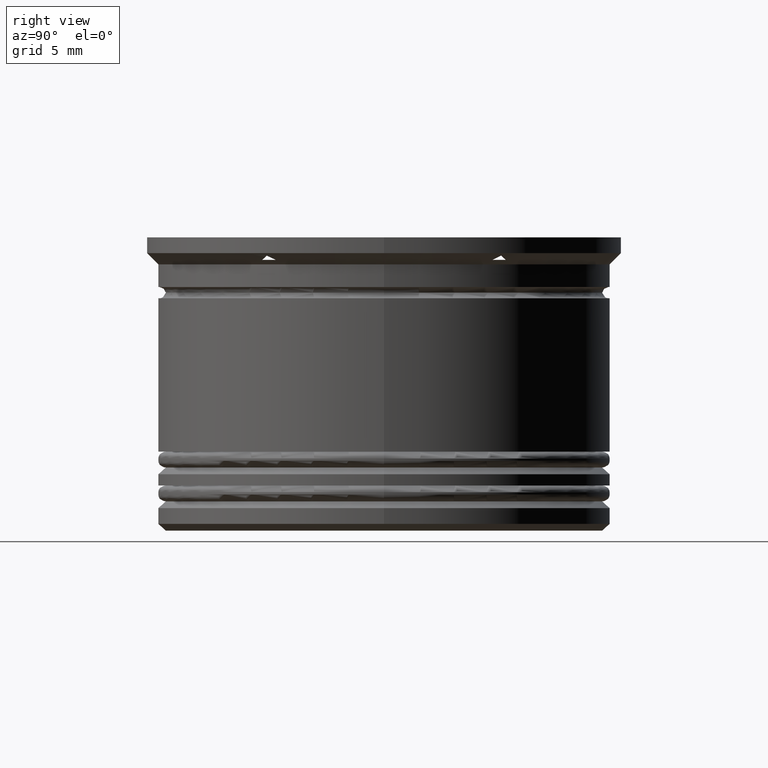
[diagram: clean part render]
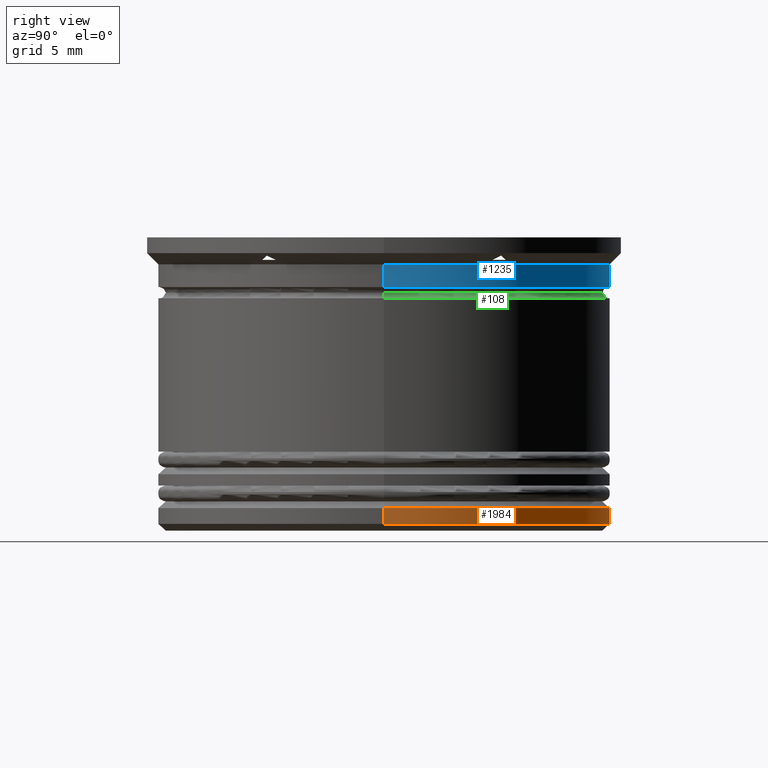
[diagram: same view with three faces highlighted in distinct colors, each labeled with its STEP entity id]
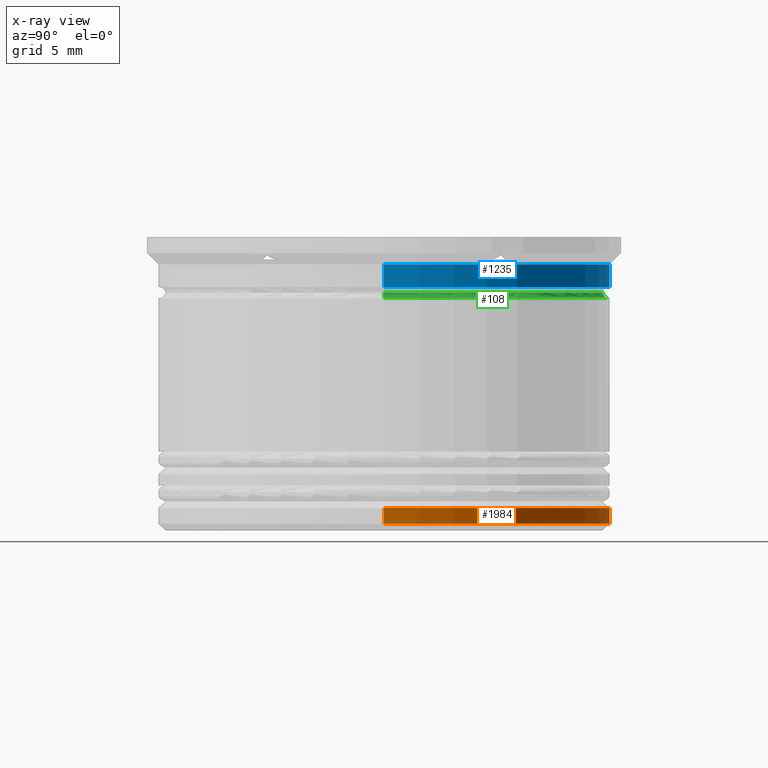
[diagram: x-ray of the same camera — body ghosted, the three highlighted faces saturated]
A machine part, right view with three faces highlighted in distinct colors.
The next image is the same camera in x-ray (body ghosted, the three faces saturated) — at least one of them is partly hidden behind the body in this view.
Their STEP definitions:

[orange] entity #1984 — the highlighted cylindrical surface (partial cylindrical patch) has radius 10 mm, axis along (-0, -0, 1).
#8 = ORIENTED_EDGE ( 'NONE', *, *, #2152, .T. ) ;
#77 = DIRECTION ( 'NONE',  ( -0.000000000000000000, -0.000000000000000000, 1.000000000000000000 ) ) ;
#241 = VERTEX_POINT ( 'NONE', #485 ) ;
#243 = CARTESIAN_POINT ( 'NONE',  ( 0.000000000000000000, 0.000000000000000000, 0.000000000000000000 ) ) ;
#267 = FACE_OUTER_BOUND ( 'NONE', #1239, .T. ) ;
#269 = CIRCLE ( 'NONE', #336, 10.00000000000000178 ) ;
#336 = AXIS2_PLACEMENT_3D ( 'NONE', #1949, #623, #1316 ) ;
#377 = DIRECTION ( 'NONE',  ( 0.000000000000000000, 0.000000000000000000, -1.000000000000000000 ) ) ;
#408 = EDGE_CURVE ( 'NONE', #430, #241, #1892, .T. ) ;
#430 = VERTEX_POINT ( 'NONE', #1389 ) ;
#447 = EDGE_CURVE ( 'NONE', #795, #582, #907, .T. ) ;
#485 = CARTESIAN_POINT ( 'NONE',  ( 10.00000000000000178, 0.000000000000000000, -12.00000000000000355 ) ) ;
#487 = DIRECTION ( 'NONE',  ( -1.000000000000000000, 0.000000000000000000, 0.000000000000000000 ) ) ;
#582 = VERTEX_POINT ( 'NONE', #1606 ) ;
#585 = CARTESIAN_POINT ( 'NONE',  ( -10.00000000000000178, 1.224646799147353454E-15, 0.000000000000000000 ) ) ;
#623 = DIRECTION ( 'NONE',  ( -0.000000000000000000, -0.000000000000000000, 1.000000000000000000 ) ) ;
#795 = VERTEX_POINT ( 'NONE', #2104 ) ;
#907 = LINE ( 'NONE', #585, #1064 ) ;
#960 = AXIS2_PLACEMENT_3D ( 'NONE', #243, #1587, #1237 ) ;
#1055 = CARTESIAN_POINT ( 'NONE',  ( 10.00000000000000178, 0.000000000000000000, 0.000000000000000000 ) ) ;
#1064 = VECTOR ( 'NONE', #77, 1000.000000000000000 ) ;
#1066 = CIRCLE ( 'NONE', #1104, 10.00000000000000178 ) ;
#1104 = AXIS2_PLACEMENT_3D ( 'NONE', #1320, #377, #487 ) ;
#1237 = DIRECTION ( 'NONE',  ( 1.000000000000000000, 0.000000000000000000, 0.000000000000000000 ) ) ;
#1239 = EDGE_LOOP ( 'NONE', ( #8, #1952, #1735, #1520 ) ) ;
#1315 = VECTOR ( 'NONE', #1429, 1000.000000000000000 ) ;
#1316 = DIRECTION ( 'NONE',  ( -1.000000000000000000, 0.000000000000000000, 0.000000000000000000 ) ) ;
#1320 = CARTESIAN_POINT ( 'NONE',  ( 0.000000000000000000, 0.000000000000000000, -12.00000000000000355 ) ) ;
#1389 = CARTESIAN_POINT ( 'NONE',  ( 10.00000000000000178, 0.000000000000000000, -12.69999999999999396 ) ) ;
#1429 = DIRECTION ( 'NONE',  ( -0.000000000000000000, -0.000000000000000000, 1.000000000000000000 ) ) ;
#1520 = ORIENTED_EDGE ( 'NONE', *, *, #408, .F. ) ;
#1578 = CYLINDRICAL_SURFACE ( 'NONE', #960, 10.00000000000000178 ) ;
#1587 = DIRECTION ( 'NONE',  ( -0.000000000000000000, -0.000000000000000000, 1.000000000000000000 ) ) ;
#1606 = CARTESIAN_POINT ( 'NONE',  ( -10.00000000000000178, 1.224646799147353454E-15, -12.00000000000000355 ) ) ;
#1735 = ORIENTED_EDGE ( 'NONE', *, *, #1886, .T. ) ;
#1886 = EDGE_CURVE ( 'NONE', #582, #241, #1066, .T. ) ;
#1892 = LINE ( 'NONE', #1055, #1315 ) ;
#1949 = CARTESIAN_POINT ( 'NONE',  ( 0.000000000000000000, 0.000000000000000000, -12.69999999999999396 ) ) ;
#1952 = ORIENTED_EDGE ( 'NONE', *, *, #447, .T. ) ;
#1984 = ADVANCED_FACE ( 'NONE', ( #267 ), #1578, .T. ) ;
#2104 = CARTESIAN_POINT ( 'NONE',  ( -10.00000000000000178, 1.224646799147353454E-15, -12.69999999999999396 ) ) ;
#2152 = EDGE_CURVE ( 'NONE', #430, #795, #269, .T. ) ;

[blue] entity #1235 — the highlighted cylindrical surface (partial cylindrical patch) has radius 10 mm, axis along (-0, -0, 1).
#12 = VECTOR ( 'NONE', #756, 1000.000000000000000 ) ;
#132 = CARTESIAN_POINT ( 'NONE',  ( 0.000000000000000000, 0.000000000000000000, -2.199999999999999734 ) ) ;
#185 = CIRCLE ( 'NONE', #330, 9.999999999999998224 ) ;
#206 = FACE_OUTER_BOUND ( 'NONE', #520, .T. ) ;
#219 = CARTESIAN_POINT ( 'NONE',  ( 9.999999999999998224, 0.000000000000000000, -1.199999999999999067 ) ) ;
#330 = AXIS2_PLACEMENT_3D ( 'NONE', #1150, #604, #443 ) ;
#339 = CARTESIAN_POINT ( 'NONE',  ( 9.999999999999998224, 0.000000000000000000, -2.199999999999999734 ) ) ;
#443 = DIRECTION ( 'NONE',  ( 1.000000000000000000, 0.000000000000000000, 0.000000000000000000 ) ) ;
#444 = ORIENTED_EDGE ( 'NONE', *, *, #579, .F. ) ;
#482 = LINE ( 'NONE', #761, #1099 ) ;
#484 = CARTESIAN_POINT ( 'NONE',  ( -9.999999999999998224, 1.224646799147353059E-15, -1.199999999999999067 ) ) ;
#505 = AXIS2_PLACEMENT_3D ( 'NONE', #738, #901, #1216 ) ;
#520 = EDGE_LOOP ( 'NONE', ( #839, #530, #444, #1026 ) ) ;
#530 = ORIENTED_EDGE ( 'NONE', *, *, #1445, .T. ) ;
#576 = CYLINDRICAL_SURFACE ( 'NONE', #505, 9.999999999999998224 ) ;
#579 = EDGE_CURVE ( 'NONE', #1890, #2118, #185, .T. ) ;
#604 = DIRECTION ( 'NONE',  ( -0.000000000000000000, -0.000000000000000000, 1.000000000000000000 ) ) ;
#616 = VERTEX_POINT ( 'NONE', #1298 ) ;
#738 = CARTESIAN_POINT ( 'NONE',  ( 0.000000000000000000, 0.000000000000000000, 0.000000000000000000 ) ) ;
#756 = DIRECTION ( 'NONE',  ( -0.000000000000000000, -0.000000000000000000, 1.000000000000000000 ) ) ;
#761 = CARTESIAN_POINT ( 'NONE',  ( -9.999999999999998224, 1.224646799147353059E-15, 0.000000000000000000 ) ) ;
#767 = LINE ( 'NONE', #1147, #12 ) ;
#839 = ORIENTED_EDGE ( 'NONE', *, *, #1791, .T. ) ;
#850 = EDGE_CURVE ( 'NONE', #1128, #1890, #767, .T. ) ;
#901 = DIRECTION ( 'NONE',  ( -0.000000000000000000, -0.000000000000000000, 1.000000000000000000 ) ) ;
#1026 = ORIENTED_EDGE ( 'NONE', *, *, #850, .F. ) ;
#1099 = VECTOR ( 'NONE', #1264, 1000.000000000000000 ) ;
#1128 = VERTEX_POINT ( 'NONE', #339 ) ;
#1147 = CARTESIAN_POINT ( 'NONE',  ( 9.999999999999998224, 0.000000000000000000, 0.000000000000000000 ) ) ;
#1150 = CARTESIAN_POINT ( 'NONE',  ( 0.000000000000000000, 0.000000000000000000, -1.199999999999999067 ) ) ;
#1216 = DIRECTION ( 'NONE',  ( 1.000000000000000000, 0.000000000000000000, 0.000000000000000000 ) ) ;
#1235 = ADVANCED_FACE ( 'NONE', ( #206 ), #576, .T. ) ;
#1264 = DIRECTION ( 'NONE',  ( -0.000000000000000000, -0.000000000000000000, 1.000000000000000000 ) ) ;
#1298 = CARTESIAN_POINT ( 'NONE',  ( -9.999999999999998224, 1.224646799147353059E-15, -2.199999999999999734 ) ) ;
#1445 = EDGE_CURVE ( 'NONE', #616, #2118, #482, .T. ) ;
#1448 = DIRECTION ( 'NONE',  ( 1.000000000000000000, 0.000000000000000000, 0.000000000000000000 ) ) ;
#1450 = AXIS2_PLACEMENT_3D ( 'NONE', #132, #1783, #1448 ) ;
#1783 = DIRECTION ( 'NONE',  ( -0.000000000000000000, -0.000000000000000000, 1.000000000000000000 ) ) ;
#1791 = EDGE_CURVE ( 'NONE', #1128, #616, #2051, .T. ) ;
#1890 = VERTEX_POINT ( 'NONE', #219 ) ;
#2051 = CIRCLE ( 'NONE', #1450, 9.999999999999998224 ) ;
#2118 = VERTEX_POINT ( 'NONE', #484 ) ;

[green] entity #108 — the highlighted toroidal blend (fillet) surface has major radius 9.95 mm and minor (blend) radius 0.25 mm.
#9 = CARTESIAN_POINT ( 'NONE',  ( -9.950000000000004619, 1.218523565151617170E-15, -2.700000000000000178 ) ) ;
#54 = CIRCLE ( 'NONE', #1279, 0.2500000000000002220 ) ;
#108 = ADVANCED_FACE ( 'NONE', ( #2146 ), #2115, .F. ) ;
#123 = DIRECTION ( 'NONE',  ( 0.000000000000000000, -1.000000000000000000, 0.000000000000000000 ) ) ;
#143 = DIRECTION ( 'NONE',  ( -0.000000000000000000, -0.000000000000000000, 1.000000000000000000 ) ) ;
#178 = EDGE_CURVE ( 'NONE', #842, #1688, #54, .T. ) ;
#270 = DIRECTION ( 'NONE',  ( 0.000000000000000000, 0.000000000000000000, -1.000000000000000000 ) ) ;
#398 = CARTESIAN_POINT ( 'NONE',  ( 9.950000000000004619, 0.000000000000000000, -2.700000000000000178 ) ) ;
#509 = CIRCLE ( 'NONE', #1141, 0.2500000000000002220 ) ;
#544 = EDGE_LOOP ( 'NONE', ( #1365, #1497, #1188, #1919 ) ) ;
#638 = CARTESIAN_POINT ( 'NONE',  ( 9.700000000000004619, 0.000000000000000000, -2.449999999999999734 ) ) ;
#752 = EDGE_CURVE ( 'NONE', #842, #2068, #2006, .T. ) ;
#791 = CARTESIAN_POINT ( 'NONE',  ( -9.700000000000004619, 1.187907395172932988E-15, -2.449999999999999734 ) ) ;
#819 = DIRECTION ( 'NONE',  ( 1.000000000000000000, 0.000000000000000000, 0.000000000000000000 ) ) ;
#826 = CIRCLE ( 'NONE', #1796, 9.950000000000004619 ) ;
#842 = VERTEX_POINT ( 'NONE', #638 ) ;
#958 = CARTESIAN_POINT ( 'NONE',  ( 0.000000000000000000, 0.000000000000000000, -2.700000000000000178 ) ) ;
#1085 = VERTEX_POINT ( 'NONE', #9 ) ;
#1108 = CARTESIAN_POINT ( 'NONE',  ( 0.000000000000000000, 0.000000000000000000, -2.449999999999999734 ) ) ;
#1136 = CARTESIAN_POINT ( 'NONE',  ( 0.000000000000000000, 0.000000000000000000, -2.449999999999999734 ) ) ;
#1141 = AXIS2_PLACEMENT_3D ( 'NONE', #1942, #1772, #1261 ) ;
#1188 = ORIENTED_EDGE ( 'NONE', *, *, #1344, .F. ) ;
#1261 = DIRECTION ( 'NONE',  ( -1.000000000000000000, 1.224646799147357151E-16, 0.000000000000000000 ) ) ;
#1279 = AXIS2_PLACEMENT_3D ( 'NONE', #2092, #123, #270 ) ;
#1344 = EDGE_CURVE ( 'NONE', #1085, #1688, #826, .T. ) ;
#1350 = AXIS2_PLACEMENT_3D ( 'NONE', #1136, #143, #819 ) ;
#1365 = ORIENTED_EDGE ( 'NONE', *, *, #752, .F. ) ;
#1497 = ORIENTED_EDGE ( 'NONE', *, *, #178, .T. ) ;
#1624 = DIRECTION ( 'NONE',  ( 1.000000000000000000, 0.000000000000000000, 0.000000000000000000 ) ) ;
#1688 = VERTEX_POINT ( 'NONE', #398 ) ;
#1725 = AXIS2_PLACEMENT_3D ( 'NONE', #1108, #1771, #1624 ) ;
#1763 = EDGE_CURVE ( 'NONE', #2068, #1085, #509, .T. ) ;
#1771 = DIRECTION ( 'NONE',  ( -0.000000000000000000, -0.000000000000000000, 1.000000000000000000 ) ) ;
#1772 = DIRECTION ( 'NONE',  ( 1.224646799147353207E-16, 1.000000000000000000, 0.000000000000000000 ) ) ;
#1796 = AXIS2_PLACEMENT_3D ( 'NONE', #958, #1802, #1931 ) ;
#1802 = DIRECTION ( 'NONE',  ( 0.000000000000000000, 0.000000000000000000, -1.000000000000000000 ) ) ;
#1919 = ORIENTED_EDGE ( 'NONE', *, *, #1763, .F. ) ;
#1931 = DIRECTION ( 'NONE',  ( -1.000000000000000000, 0.000000000000000000, 0.000000000000000000 ) ) ;
#1942 = CARTESIAN_POINT ( 'NONE',  ( -9.950000000000004619, 1.218523565151616972E-15, -2.449999999999999734 ) ) ;
#2006 = CIRCLE ( 'NONE', #1725, 9.700000000000004619 ) ;
#2068 = VERTEX_POINT ( 'NONE', #791 ) ;
#2092 = CARTESIAN_POINT ( 'NONE',  ( 9.950000000000004619, 0.000000000000000000, -2.449999999999999734 ) ) ;
#2115 = TOROIDAL_SURFACE ( 'NONE', #1350, 9.950000000000004619, 0.2500000000000002220 ) ;
#2146 = FACE_OUTER_BOUND ( 'NONE', #544, .T. ) ;